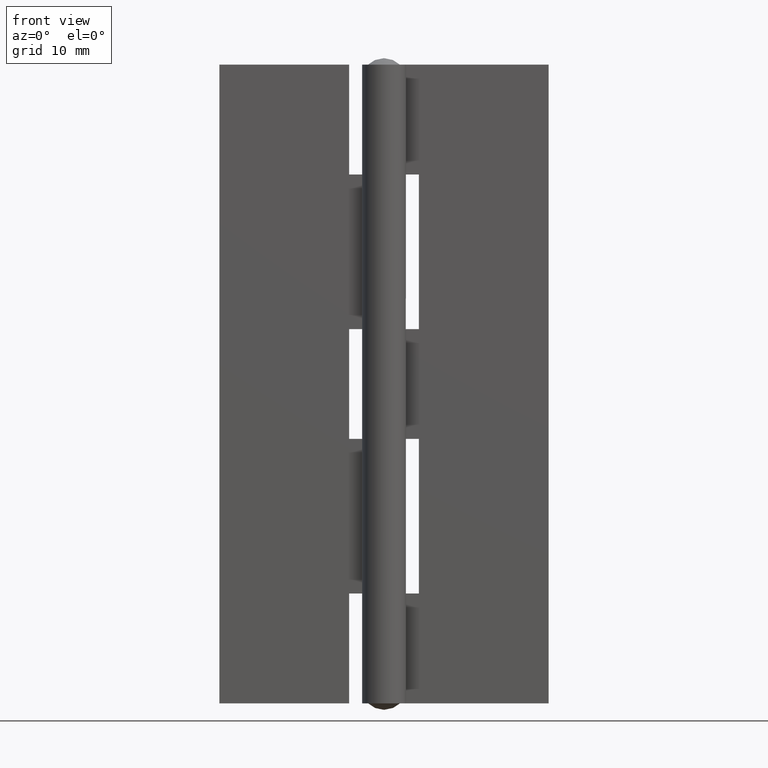
[diagram: clean part render]
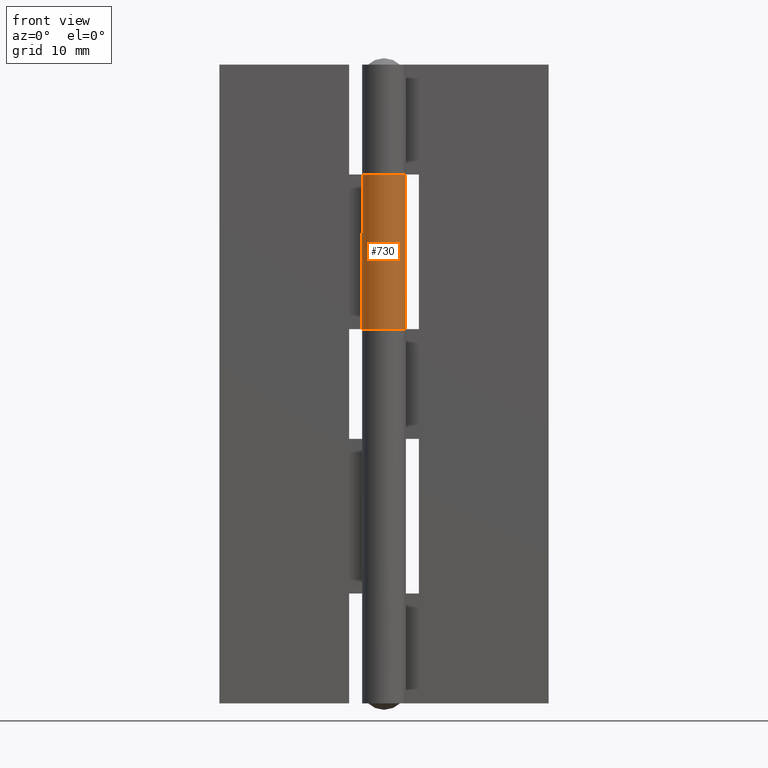
[diagram: same view with one face highlighted and labeled with its STEP entity id]
A machine part, front view. The second image highlights one B-rep face of the part: STEP entity #730.
In plain terms, the highlighted face is a freeform B-spline surface patch.
Its self-contained STEP definition (entity closure, byte-faithful):
#136=CARTESIAN_POINT('',(-1.875497693946830,1.149996000000000,53.0));
#137=VERTEX_POINT('',#136);
#150=CARTESIAN_POINT('',(-1.875497693946830,1.149996000000000,37.500000000000000));
#151=VERTEX_POINT('',#150);
#157=CARTESIAN_POINT('',(-1.875497693946830,1.149996000000000,53.0));
#158=CARTESIAN_POINT('',(-1.875497693946830,1.149996000000000,37.500000000000000));
#159=QUASI_UNIFORM_CURVE('',1,(#157,#158),.UNSPECIFIED.,.F.,.U.);
#160=EDGE_CURVE('',#137,#151,#159,.T.);
#364=CARTESIAN_POINT('',(1.431147E-014,2.199996000000000,53.0));
#365=VERTEX_POINT('',#364);
#366=CARTESIAN_POINT('',(1.431147E-014,2.199996000000000,53.0));
#367=CARTESIAN_POINT('',(0.150742393474836,2.200011865437740,52.999999999999929));
#368=CARTESIAN_POINT('',(0.482379054540879,2.165793249999264,53.000000000000099));
#369=CARTESIAN_POINT('',(0.999932718497473,1.989243696752207,52.999999999999822));
#370=CARTESIAN_POINT('',(1.428456202171348,1.698463821297101,53.000000000000199));
#371=CARTESIAN_POINT('',(1.799056605762562,1.299465359325090,53.000000000000028));
#372=CARTESIAN_POINT('',(2.042263161464467,0.877119377343849,52.999999999999780));
#373=CARTESIAN_POINT('',(2.165964679545971,0.439631584599338,53.000000000000171));
#374=CARTESIAN_POINT('',(2.209586749842588,0.049382440460639,52.999999999999723));
#375=CARTESIAN_POINT('',(2.187076616621386,-0.374351553295065,53.000000000000369));
#376=CARTESIAN_POINT('',(2.061462071365500,-0.812392812233031,53.000000000000718));
#377=CARTESIAN_POINT('',(1.849933321944764,-1.213871568255671,52.999999999998927));
#378=CARTESIAN_POINT('',(1.586495009579726,-1.546515419436361,53.000000000000682));
#379=CARTESIAN_POINT('',(1.237421600343448,-1.837779467732993,53.000000000000057));
#380=CARTESIAN_POINT('',(0.863002661713046,-2.037385071066507,52.999999999999822));
#381=CARTESIAN_POINT('',(0.401300058677173,-2.182724590090293,53.000000000000782));
#382=CARTESIAN_POINT('',(-0.114958329149294,-2.223434657873414,52.999999999997968));
#383=CARTESIAN_POINT('',(-0.652111768211794,-2.120888861392427,53.000000000003141));
#384=CARTESIAN_POINT('',(-1.151463120693717,-1.901108271986518,52.999999999995758));
#385=CARTESIAN_POINT('',(-1.584175623629143,-1.564377756075357,53.000000000000767));
#386=CARTESIAN_POINT('',(-1.948110451546564,-1.077822813094991,53.000000000000632));
#387=CARTESIAN_POINT('',(-2.148948793231433,-0.567612381932186,52.999999999999531));
#388=CARTESIAN_POINT('',(-2.222624803588473,0.003576457003926,53.000000000000391));
#389=CARTESIAN_POINT('',(-2.154286014567044,0.578291305045613,52.999999999999531));
#390=CARTESIAN_POINT('',(-1.985885972470838,0.970125603759595,53.000000000000163));
#391=CARTESIAN_POINT('',(-1.875497693946830,1.149996000000000,53.0));
#392=B_SPLINE_CURVE_WITH_KNOTS('',3,(#366,#367,#368,#369,#370,#371,#372,#373,#374,#375,#376,#377,#378,#379,#380,#381,#382,#383,#384,#385,#386,#387,#388,#389,#390,#391),.UNSPECIFIED.,.F.,.U.,(4,1,1,1,1,1,1,1,1,1,1,1,1,1,1,1,1,1,1,1,1,1,1,4),(0.000000077843275,0.452234280862342,0.994941381198490,1.628098380274848,1.989898777410794,2.623044278472365,3.075271957944667,3.346602768234339,3.798867349392427,4.341577385853938,4.703387127084953,5.155646344167777,5.607882813668120,6.060098510942596,6.421893318902421,7.055061577649496,7.597772018424168,8.050031235503319,8.683154722890791,9.225822953269809,9.858993472508125,10.311247868074540,10.944416126838810,11.577539614206110),.UNSPECIFIED.);
#393=EDGE_CURVE('',#365,#137,#392,.T.);
#548=CARTESIAN_POINT('',(1.431147E-014,2.199996000000000,37.500000000000000));
#549=VERTEX_POINT('',#548);
#555=CARTESIAN_POINT('',(-1.875497693946830,1.149996000000000,37.500000000000000));
#556=CARTESIAN_POINT('',(-2.009635430655090,0.931603248836746,37.500000000000043));
#557=CARTESIAN_POINT('',(-2.155188928550334,0.561286850305445,37.499999999999957));
#558=CARTESIAN_POINT('',(-2.217240035141475,-0.010684877781636,37.500000000000043));
#559=CARTESIAN_POINT('',(-2.169853043456034,-0.448620627445088,37.500000000000000));
#560=CARTESIAN_POINT('',(-2.020681479799686,-0.909108423264227,37.499999999999872));
#561=CARTESIAN_POINT('',(-1.794689341745901,-1.304792657696023,37.499999999999993));
#562=CARTESIAN_POINT('',(-1.465909516634156,-1.661255382273009,37.499999999999901));
#563=CARTESIAN_POINT('',(-1.095960198156785,-1.925495376947616,37.500000000000277));
#564=CARTESIAN_POINT('',(-0.652109702692588,-2.120883376025243,37.499999999999837));
#565=CARTESIAN_POINT('',(-0.114966297143621,-2.223440471603918,37.500000000000107));
#566=CARTESIAN_POINT('',(0.492416812954658,-2.175575935742956,37.499999999999773));
#567=CARTESIAN_POINT('',(1.061209212790530,-1.957221902320893,37.500000000000583));
#568=CARTESIAN_POINT('',(1.477322077200775,-1.651371821805982,37.499999999999851));
#569=CARTESIAN_POINT('',(1.800676791417046,-1.291181754119409,37.499999999999403));
#570=CARTESIAN_POINT('',(2.014200912552967,-0.923354721959766,37.500000000001627));
#571=CARTESIAN_POINT('',(2.147554260636004,-0.521358501305532,37.499999999997627));
#572=CARTESIAN_POINT('',(2.203930384626117,-0.162741773612085,37.500000000001407));
#573=CARTESIAN_POINT('',(2.200365032308432,0.260764911885321,37.499999999999552));
#574=CARTESIAN_POINT('',(2.103550858346242,0.706026893330239,37.500000000000327));
#575=CARTESIAN_POINT('',(1.883999661700922,1.172158196830064,37.499999999999872));
#576=CARTESIAN_POINT('',(1.546053496766291,1.602090079923725,37.500000000000149));
#577=CARTESIAN_POINT('',(1.105314311035790,1.928304202291537,37.499999999999659));
#578=CARTESIAN_POINT('',(0.572782111169685,2.147529228960171,37.500000000001073));
#579=CARTESIAN_POINT('',(0.211045521967335,2.200071733732917,37.499999999998963));
#580=CARTESIAN_POINT('',(1.431147E-014,2.199996000000000,37.500000000000000));
#581=B_SPLINE_CURVE_WITH_KNOTS('',3,(#555,#556,#557,#558,#559,#560,#561,#562,#563,#564,#565,#566,#567,#568,#569,#570,#571,#572,#573,#574,#575,#576,#577,#578,#579,#580),.UNSPECIFIED.,.F.,.U.,(4,1,1,1,1,1,1,1,1,1,1,1,1,1,1,1,1,1,1,1,1,1,1,4),(0.000000077844627,0.768799531179550,1.175836115575715,1.718550717182437,2.080356669948115,2.623044278473193,3.075271957945441,3.527508427567554,3.979767644631994,4.522478085386848,5.155646344168258,5.788769831575787,6.331438061930060,6.693252240739502,7.235962277195075,7.597772018424355,7.959571325239457,8.321383006383904,8.864041740664570,9.316278210237986,9.858993472508148,10.492156909763340,10.944416126838810,11.577539614206110),.UNSPECIFIED.);
#582=EDGE_CURVE('',#151,#549,#581,.T.);
#698=CARTESIAN_POINT('',(-1.834545473004467,1.214259159938558,53.387500000000010));
#699=CARTESIAN_POINT('',(-1.834545473004467,1.214259159938558,37.102812499999992));
#700=CARTESIAN_POINT('',(-3.351997021564838,-1.078360044231881,53.387500000000010));
#701=CARTESIAN_POINT('',(-3.351997021564838,-1.078360044231881,37.102812499999985));
#702=CARTESIAN_POINT('',(-0.782430253389667,-2.056157897292100,53.387500000000010));
#703=CARTESIAN_POINT('',(-0.782430253389667,-2.056157897292100,37.102812499999992));
#704=CARTESIAN_POINT('',(1.787136514785504,-3.033955750352320,53.387500000000010));
#705=CARTESIAN_POINT('',(1.787136514785504,-3.033955750352320,37.102812499999985));
#706=CARTESIAN_POINT('',(2.177685931977059,-0.312516210276020,53.387500000000010));
#707=CARTESIAN_POINT('',(2.177685931977059,-0.312516210276020,37.102812499999992));
#708=CARTESIAN_POINT('',(2.568235349168615,2.408923329800280,53.387500000000010));
#709=CARTESIAN_POINT('',(2.568235349168615,2.408923329800280,37.102812499999985));
#710=CARTESIAN_POINT('',(-0.172609696764860,2.193214146543518,53.387500000000010));
#711=CARTESIAN_POINT('',(-0.172609696764860,2.193214146543518,37.102812499999992));
#719=(BOUNDED_SURFACE()B_SPLINE_SURFACE(1,2,((#698,#700,#702,#704,#706,#708,#710),(#699,#701,#703,#705,#707,#709,#711)),.UNSPECIFIED.,.F.,.F.,.U.)B_SPLINE_SURFACE_WITH_KNOTS((2,2),(3,2,2,3),(0.0,16.284687500000022),(0.0,4.228842634315821,8.457685268631643,12.686527902947461),.UNSPECIFIED.)GEOMETRIC_REPRESENTATION_ITEM()RATIONAL_B_SPLINE_SURFACE(((1.0,0.624788514543960,1.0,0.624788514543960,1.0,0.624788514543960,1.0),(1.0,0.624788514543960,1.0,0.624788514543960,1.0,0.624788514543960,1.0)))REPRESENTATION_ITEM('')SURFACE());
#720=CARTESIAN_POINT('',(1.431147E-014,2.199996000000000,53.0));
#721=CARTESIAN_POINT('',(1.431147E-014,2.199996000000000,37.500000000000000));
#722=QUASI_UNIFORM_CURVE('',1,(#720,#721),.UNSPECIFIED.,.F.,.U.);
#723=EDGE_CURVE('',#365,#549,#722,.T.);
#724=ORIENTED_EDGE('',*,*,#723,.F.);
#725=ORIENTED_EDGE('',*,*,#393,.T.);
#726=ORIENTED_EDGE('',*,*,#160,.T.);
#727=ORIENTED_EDGE('',*,*,#582,.T.);
#728=EDGE_LOOP('',(#724,#725,#726,#727));
#729=FACE_OUTER_BOUND('',#728,.T.);
#730=ADVANCED_FACE('',(#729),#719,.T.);